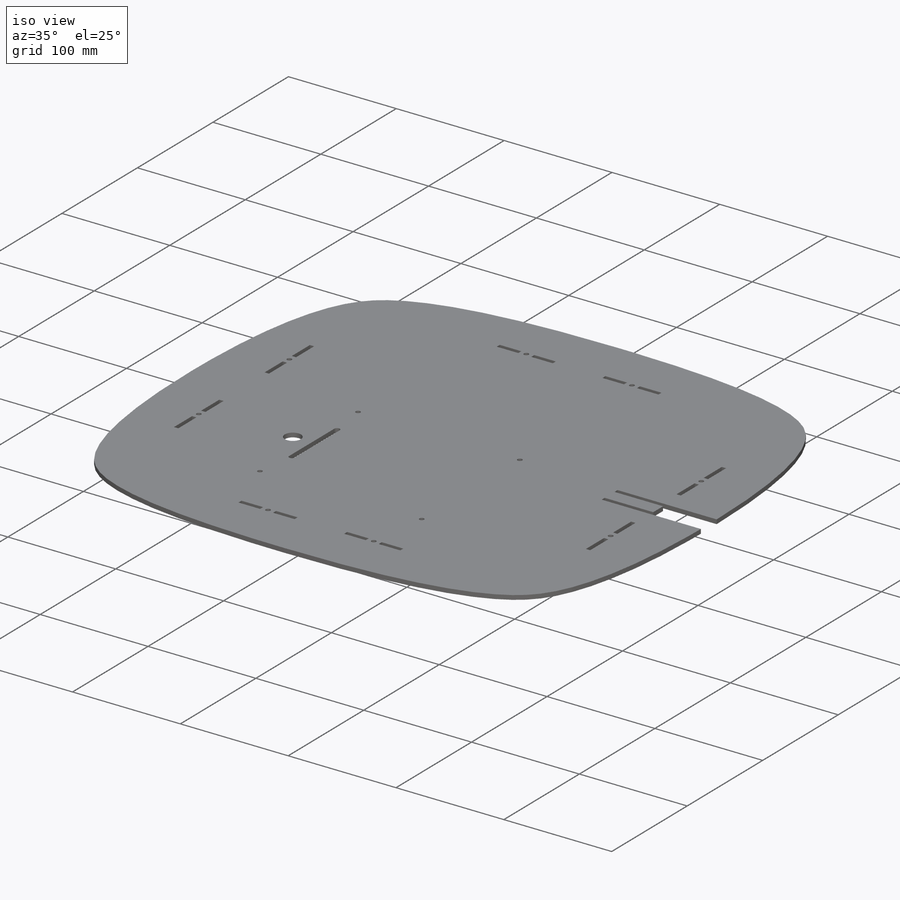
[diagram: iso view]
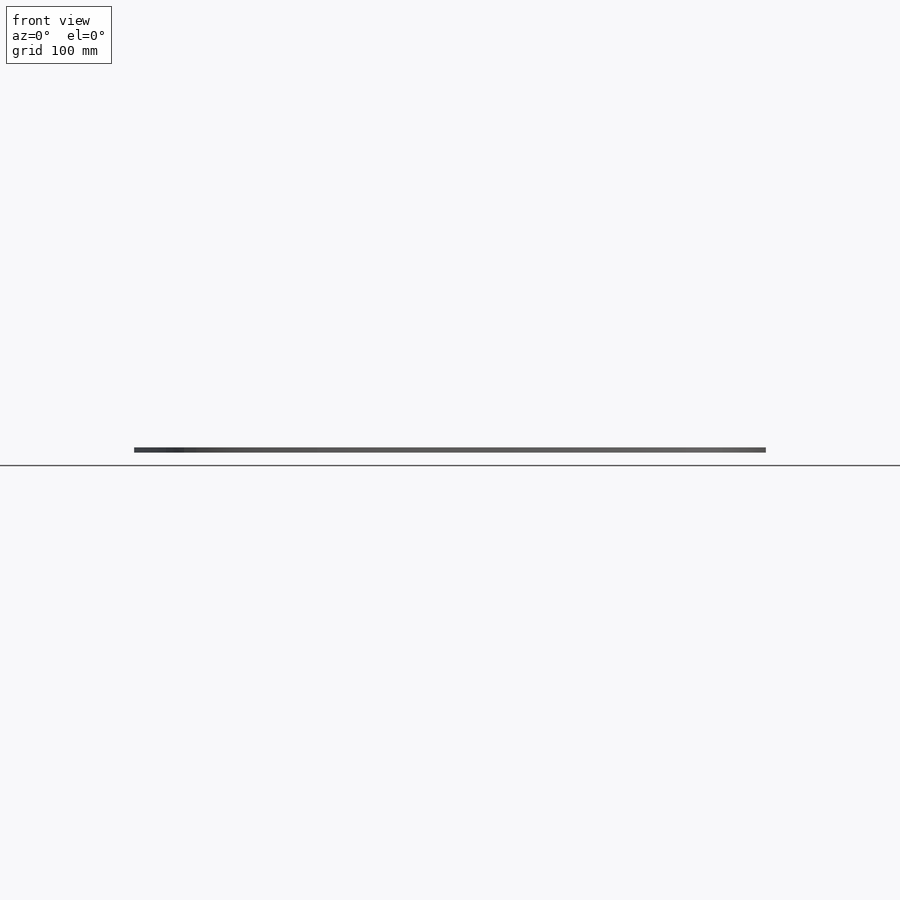
[diagram: front view]
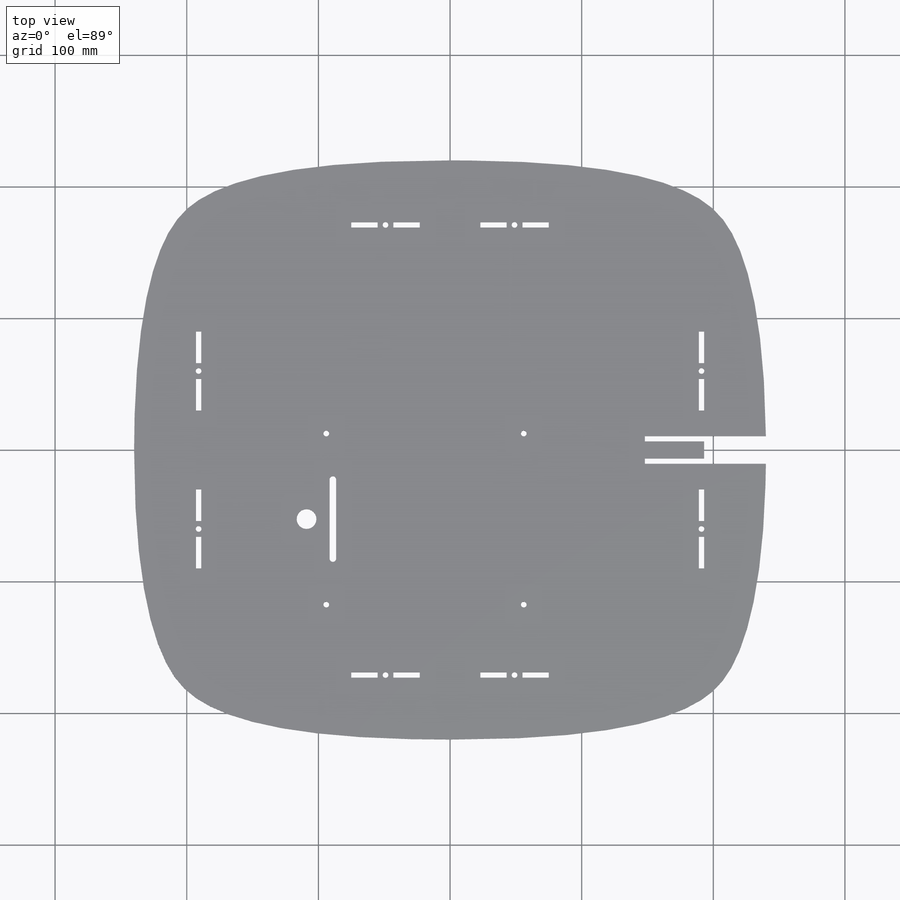
[diagram: top view]
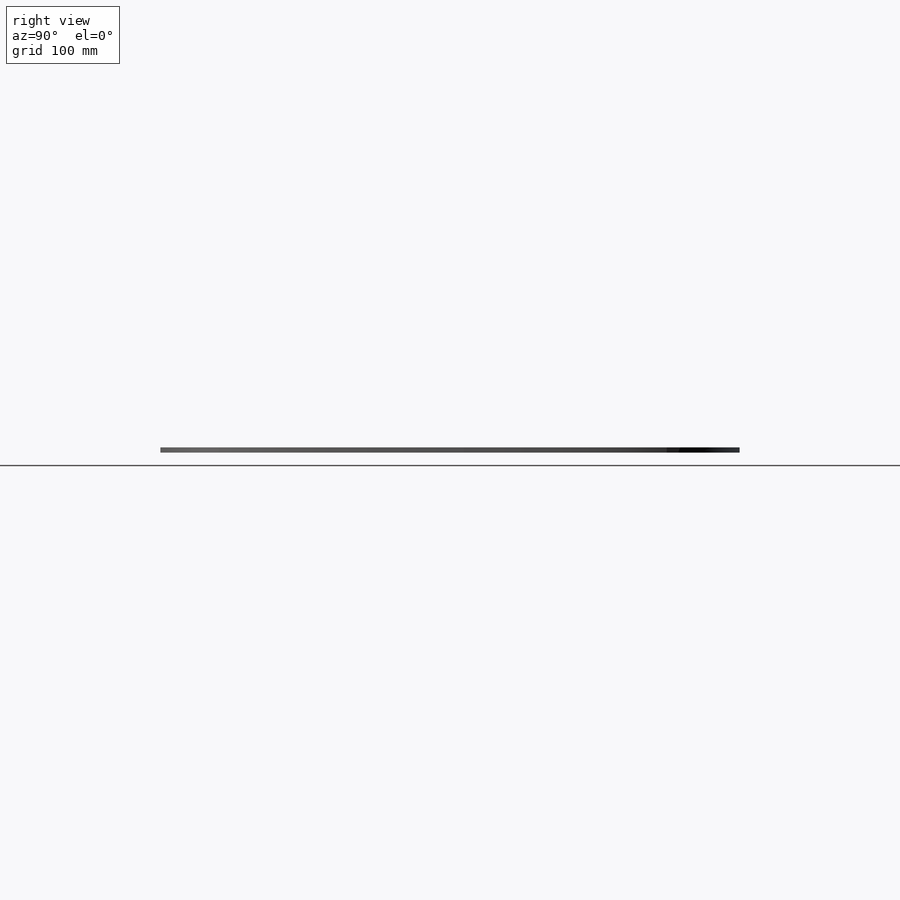
[diagram: right view]
SOLIDWORKS PART (.sldprt)
format: sldprt  version: not decoded by parser v0  size: 415,744 bytes
history: native  units: mm
features: sketch x7, cut_extrude x2, hole x2, material x1, extrude x1 (+11 scaffold rows collapsed)
feature tree (24):
  scaffold x11  (default folders/planes/origin — collapsed)
  material  "Material <not specified>"
  sketch  "Sketch1"  dims[c1.D1=220.0mm c1.D2=440.0mm c2.D1=440.0mm c2.D2=400.0mm c3.D1=240.0mm c3.D2=220.0mm]
  extrude  "Boss-Extrude1"  Depth=4mm
  sketch  "Sketch2"  dims[c1.D1=189.0mm c1.D2=12.0mm c1.D3=24.0mm c1.D4=24.0mm c1.D5=24.0mm c1.D6=12.0mm c1.D7=24.0mm c1.D8=4.0mm c1.D9=30.0mm c1.D10=30.0mm c1.D11=169.0mm c1.D12=12.0mm c1.D13=20.0mm c1.D14=20.0mm c1.D15=~10.705222mm c2.D15=90.0deg c3.D15=4.0mm c3.D16=23.0mm c3.D17=20.0mm c3.D18=12.0mm c3.D19=20.0mm c3.D20=23.0mm c3.D21=4.0mm c3.D22=0.0mm c3.D23=120.0mm c4.D22=148.0mm c4.D21=148.0mm c5.D22=4.0mm c5.D23=6.5mm]
  cut_extrude  "Cut-Extrude1"  Depth=6mm
  hole  "M4 Clearance Hole1"  Diameter=4.3mm Depth=6mm
  sketch  "Sketch4"
  sketch  "Sketch3"  dims[hole-wizard template sketch: 50 standard entries collapsed; hole parameters above]
  hole  "M4 Clearance Hole2"  Diameter=4.3mm Depth=6mm
  sketch  "Sketch6"  dims[D1=150.0mm D2=130.0mm D3=51.5mm D4=95.0mm]
  sketch  "Sketch5"  dims[hole-wizard template sketch: 50 standard entries collapsed; hole parameters above]
  sketch  "Sketch7"  dims[D5=15.0mm D1=5.0mm D2=60.0mm D3=65.0mm D4=5.0mm D6=20.0mm]
  cut_extrude  "Cut-Extrude2"  Depth=10mm
decode coverage: 11 of 12 modeling features carry decoded parameters
note: ~ marks probable driven/reference dimensions
note: suppression state not decoded; provenance and decode notes live in map.json
